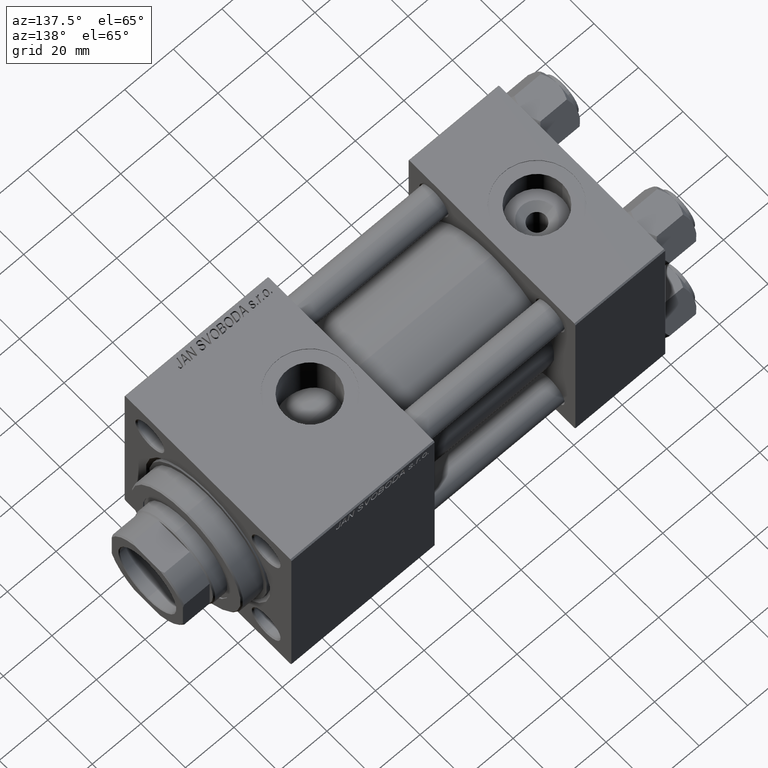
[diagram: clean part render]
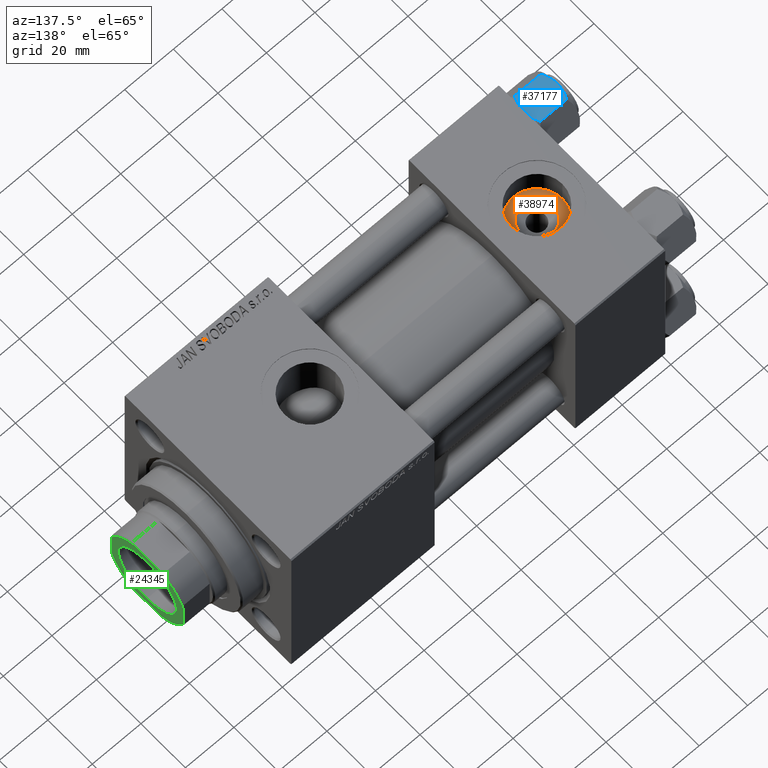
[diagram: same view with three faces highlighted in distinct colors, each labeled with its STEP entity id]
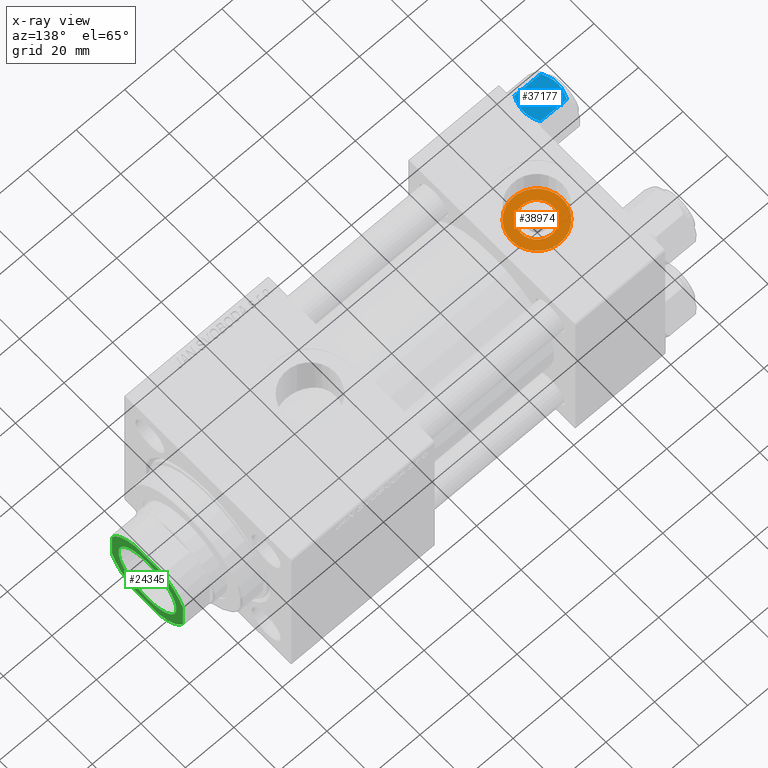
[diagram: x-ray of the same camera — body ghosted, the three highlighted faces saturated]
A machine part, auxiliary view with three faces highlighted in distinct colors.
The next image is the same camera in x-ray (body ghosted, the three faces saturated) — at least one of them is partly hidden behind the body in this view.
Their STEP definitions:

[orange] entity #38974 — the highlighted planar face has unit normal (0, 0, 1).
#921 = EDGE_CURVE ( 'NONE', #39204, #44879, #44439, .T. ) ;
#4112 = CARTESIAN_POINT ( 'NONE',  ( 18.50000000000000000, -5.204170427930421283E-15, 26.69999999999999929 ) ) ;
#7410 = AXIS2_PLACEMENT_3D ( 'NONE', #20729, #8587, #39753 ) ;
#8013 = VERTEX_POINT ( 'NONE', #18516 ) ;
#8190 = DIRECTION ( 'NONE',  ( 1.000000000000000000, 0.000000000000000000, 0.000000000000000000 ) ) ;
#8587 = DIRECTION ( 'NONE',  ( -0.000000000000000000, -0.000000000000000000, -1.000000000000000000 ) ) ;
#9542 = AXIS2_PLACEMENT_3D ( 'NONE', #4112, #27685, #28172 ) ;
#9697 = DIRECTION ( 'NONE',  ( 1.000000000000000000, 0.000000000000000000, 0.000000000000000000 ) ) ;
#10641 = CARTESIAN_POINT ( 'NONE',  ( 11.86000000000001364, -4.391004953296580751E-15, 26.69999999999999929 ) ) ;
#11038 = CARTESIAN_POINT ( 'NONE',  ( 18.50000000000000000, -5.204170427930421283E-15, 26.69999999999999929 ) ) ;
#12160 = CIRCLE ( 'NONE', #14600, 10.48000000000000043 ) ;
#14600 = AXIS2_PLACEMENT_3D ( 'NONE', #49526, #45189, #9697 ) ;
#16172 = AXIS2_PLACEMENT_3D ( 'NONE', #38109, #19334, #8190 ) ;
#18516 = CARTESIAN_POINT ( 'NONE',  ( 25.13999999999998636, -5.204170427930421283E-15, 26.69999999999999929 ) ) ;
#18636 = FACE_BOUND ( 'NONE', #23714, .T. ) ;
#19334 = DIRECTION ( 'NONE',  ( -0.000000000000000000, -0.000000000000000000, -1.000000000000000000 ) ) ;
#20729 = CARTESIAN_POINT ( 'NONE',  ( 18.50000000000000000, -5.204170427930421283E-15, 26.69999999999999929 ) ) ;
#20773 = VERTEX_POINT ( 'NONE', #10641 ) ;
#23714 = EDGE_LOOP ( 'NONE', ( #42103, #24581 ) ) ;
#24581 = ORIENTED_EDGE ( 'NONE', *, *, #36056, .T. ) ;
#26475 = DIRECTION ( 'NONE',  ( 0.000000000000000000, 0.000000000000000000, 1.000000000000000000 ) ) ;
#27685 = DIRECTION ( 'NONE',  ( 0.000000000000000000, 0.000000000000000000, 1.000000000000000000 ) ) ;
#28172 = DIRECTION ( 'NONE',  ( 1.000000000000000000, 0.000000000000000000, 0.000000000000000000 ) ) ;
#28871 = EDGE_LOOP ( 'NONE', ( #28991, #47208 ) ) ;
#28991 = ORIENTED_EDGE ( 'NONE', *, *, #37016, .T. ) ;
#30250 = CARTESIAN_POINT ( 'NONE',  ( 8.019999999999999574, -3.920740582423995006E-15, 26.69999999999999929 ) ) ;
#30314 = FACE_OUTER_BOUND ( 'NONE', #28871, .T. ) ;
#31697 = CIRCLE ( 'NONE', #7410, 6.639999999999986358 ) ;
#34366 = DIRECTION ( 'NONE',  ( 1.000000000000000000, 0.000000000000000000, -0.000000000000000000 ) ) ;
#36056 = EDGE_CURVE ( 'NONE', #20773, #8013, #39615, .T. ) ;
#37016 = EDGE_CURVE ( 'NONE', #44879, #39204, #12160, .T. ) ;
#38109 = CARTESIAN_POINT ( 'NONE',  ( 18.50000000000000000, -5.204170427930421283E-15, 26.69999999999999929 ) ) ;
#38114 = CARTESIAN_POINT ( 'NONE',  ( 28.98000000000000043, -5.204170427930421283E-15, 26.69999999999999929 ) ) ;
#38974 = ADVANCED_FACE ( 'NONE', ( #18636, #30314 ), #45777, .T. ) ;
#39204 = VERTEX_POINT ( 'NONE', #30250 ) ;
#39615 = CIRCLE ( 'NONE', #16172, 6.639999999999986358 ) ;
#39753 = DIRECTION ( 'NONE',  ( 1.000000000000000000, 0.000000000000000000, 0.000000000000000000 ) ) ;
#42103 = ORIENTED_EDGE ( 'NONE', *, *, #47704, .T. ) ;
#44439 = CIRCLE ( 'NONE', #9542, 10.48000000000000043 ) ;
#44879 = VERTEX_POINT ( 'NONE', #38114 ) ;
#45189 = DIRECTION ( 'NONE',  ( 0.000000000000000000, 0.000000000000000000, 1.000000000000000000 ) ) ;
#45777 = PLANE ( 'NONE',  #48703 ) ;
#47208 = ORIENTED_EDGE ( 'NONE', *, *, #921, .T. ) ;
#47704 = EDGE_CURVE ( 'NONE', #8013, #20773, #31697, .T. ) ;
#48703 = AXIS2_PLACEMENT_3D ( 'NONE', #11038, #26475, #34366 ) ;
#49526 = CARTESIAN_POINT ( 'NONE',  ( 18.50000000000000000, -5.204170427930421283E-15, 26.69999999999999929 ) ) ;

[blue] entity #37177 — the highlighted planar face has unit normal (0, 0, -1).
#373 = CARTESIAN_POINT ( 'NONE',  ( -10.69859855102501101, 1.595914123792268491, -13.28585617404753627 ) ) ;
#1039 = CARTESIAN_POINT ( 'NONE',  ( -11.61999999999999922, 6.288644352490894150E-15, -14.00000000000000000 ) ) ;
#1254 = CARTESIAN_POINT ( 'NONE',  ( -11.61999999999999922, 6.288644352490894150E-15, -14.00000000000000000 ) ) ;
#3418 = CARTESIAN_POINT ( 'NONE',  ( -8.460569896449618099, 5.472293462311865753, 3.939644352451667145E-15 ) ) ;
#3663 = CARTESIAN_POINT ( 'NONE',  ( -5.809999999999997833, 10.06321519197518022, -1.556784808024814115 ) ) ;
#4611 = DIRECTION ( 'NONE',  ( -0.000000000000000000, -0.000000000000000000, 1.000000000000000000 ) ) ;
#5095 = CARTESIAN_POINT ( 'NONE',  ( -6.265018354709776638, 9.275100283241455301, -12.89823354668505218 ) ) ;
#5497 = CARTESIAN_POINT ( 'NONE',  ( -9.716999946243694453, 3.296092779912229265, -0.1545239700039824915 ) ) ;
#6003 = CARTESIAN_POINT ( 'NONE',  ( -11.16498164529022219, 0.7881149087337359083, -1.101766453314949379 ) ) ;
#7569 = ORIENTED_EDGE ( 'NONE', *, *, #45726, .F. ) ;
#7737 = CARTESIAN_POINT ( 'NONE',  ( -8.715000000000003411, 5.031607595987592774, 0.000000000000000000 ) ) ;
#8404 = FACE_OUTER_BOUND ( 'NONE', #41782, .T. ) ;
#8496 = CARTESIAN_POINT ( 'NONE',  ( -9.227666995912096937, 4.143642311704127223, -13.96005881939308857 ) ) ;
#8698 = LINE ( 'NONE', #12994, #9840 ) ;
#8741 = CARTESIAN_POINT ( 'NONE',  ( -9.974696630283190757, 2.849749030213795109, -13.69973261901325934 ) ) ;
#8892 = DIRECTION ( 'NONE',  ( 0.5000000000000001110, 0.8660254037844384856, 0.000000000000000000 ) ) ;
#9323 = EDGE_CURVE ( 'NONE', #13067, #17382, #29662, .T. ) ;
#9840 = VECTOR ( 'NONE', #23901, 1000.000000000000000 ) ;
#10480 = B_SPLINE_CURVE_WITH_KNOTS ( 'NONE', 3,
 ( #40225, #48123, #5497, #36689, #6003, #36429 ),
 .UNSPECIFIED., .F., .F.,
 ( 4, 2, 4 ),
 ( 0.006022845781655589842, 0.009013049135303633289, 0.01200325248895167674 ),
 .UNSPECIFIED. ) ;
#11111 = EDGE_CURVE ( 'NONE', #36585, #20021, #8698, .T. ) ;
#11159 = CARTESIAN_POINT ( 'NONE',  ( -8.715000000000003411, 5.031607595987592774, 0.000000000000000000 ) ) ;
#11260 = ORIENTED_EDGE ( 'NONE', *, *, #42437, .F. ) ;
#11438 = B_SPLINE_CURVE_WITH_KNOTS ( 'NONE', 3,
 ( #39821, #19369, #11536, #15081, #5095, #23421 ),
 .UNSPECIFIED., .F., .F.,
 ( 4, 2, 4 ),
 ( 0.006022845781655582903, 0.009013049135303629819, 0.01200325248895167847 ),
 .UNSPECIFIED. ) ;
#11536 = CARTESIAN_POINT ( 'NONE',  ( -7.713000053756302599, 6.767122412062954062, -13.84547602999601601 ) ) ;
#11811 = CARTESIAN_POINT ( 'NONE',  ( -8.969430103550378064, 4.590921729663314466, -14.00000000000000178 ) ) ;
#12453 = DIRECTION ( 'NONE',  ( 0.8660254037844385966, -0.5000000000000002220, 0.000000000000000000 ) ) ;
#12843 = EDGE_CURVE ( 'NONE', #13067, #50194, #30744, .T. ) ;
#12994 = CARTESIAN_POINT ( 'NONE',  ( -5.809999999999997833, 10.06321519197518022, -14.00000000000000000 ) ) ;
#13067 = VERTEX_POINT ( 'NONE', #33762 ) ;
#15055 = CARTESIAN_POINT ( 'NONE',  ( -11.61999999999999922, 6.270720075409452187E-15, -1.556784808024810562 ) ) ;
#15081 = CARTESIAN_POINT ( 'NONE',  ( -6.733375043383492020, 8.463882702393842550, -13.28854452935654962 ) ) ;
#15338 = CARTESIAN_POINT ( 'NONE',  ( -6.731401448974986934, 8.467301068182916168, -0.7141438259524646170 ) ) ;
#16106 = CARTESIAN_POINT ( 'NONE',  ( -11.61999999999999922, 6.270720075510426383E-15, -12.44321519197518811 ) ) ;
#16209 = AXIS2_PLACEMENT_3D ( 'NONE', #1254, #12453, #8892 ) ;
#17172 = VECTOR ( 'NONE', #4611, 1000.000000000000000 ) ;
#17382 = VERTEX_POINT ( 'NONE', #18496 ) ;
#18218 = EDGE_CURVE ( 'NONE', #17382, #36585, #11438, .T. ) ;
#18496 = CARTESIAN_POINT ( 'NONE',  ( -8.715000000000001634, 5.031607595987591885, -14.00000000000000000 ) ) ;
#19369 = CARTESIAN_POINT ( 'NONE',  ( -8.209704053696567527, 5.906805847843725310, -14.00000000000000533 ) ) ;
#20021 = VERTEX_POINT ( 'NONE', #26076 ) ;
#22685 = CARTESIAN_POINT ( 'NONE',  ( -8.202333004087897450, 5.919572880271055659, -0.03994118060690620559 ) ) ;
#23337 = B_SPLINE_CURVE_WITH_KNOTS ( 'NONE', 3,
 ( #3663, #34610, #15338, #23697, #42461, #22685, #3418, #7737 ),
 .UNSPECIFIED., .F., .F.,
 ( 4, 2, 2, 4 ),
 ( 2.544312114902182352E-07, 0.003011550106433540791, 0.004517197944044565316, 0.006022845781655589842 ),
 .UNSPECIFIED. ) ;
#23399 = VERTEX_POINT ( 'NONE', #11159 ) ;
#23421 = CARTESIAN_POINT ( 'NONE',  ( -5.809999999999997833, 10.06321519197518022, -12.44321519197518455 ) ) ;
#23697 = CARTESIAN_POINT ( 'NONE',  ( -7.455303369716805406, 7.213466161761384221, -0.3002673809867362764 ) ) ;
#23901 = DIRECTION ( 'NONE',  ( -0.000000000000000000, -0.000000000000000000, 1.000000000000000000 ) ) ;
#24828 = PLANE ( 'NONE',  #16209 ) ;
#26076 = CARTESIAN_POINT ( 'NONE',  ( -5.809999999999997833, 10.06321519197518022, -1.556784808024814115 ) ) ;
#27342 = ORIENTED_EDGE ( 'NONE', *, *, #18218, .F. ) ;
#29662 = B_SPLINE_CURVE_WITH_KNOTS ( 'NONE', 3,
 ( #16106, #31568, #373, #8741, #35870, #8496, #11811, #38920 ),
 .UNSPECIFIED., .F., .F.,
 ( 4, 2, 2, 4 ),
 ( 2.544312114905218436E-07, 0.003011550106433537755, 0.004517197944044560980, 0.006022845781655582903 ),
 .UNSPECIFIED. ) ;
#29786 = CARTESIAN_POINT ( 'NONE',  ( -5.809999999999997833, 10.06321519197518022, -12.44321519197518455 ) ) ;
#30744 = LINE ( 'NONE', #1039, #17172 ) ;
#30792 = ORIENTED_EDGE ( 'NONE', *, *, #12843, .T. ) ;
#31568 = CARTESIAN_POINT ( 'NONE',  ( -11.16445427487471598, 0.7890283410878030645, -12.89876091710047312 ) ) ;
#33762 = CARTESIAN_POINT ( 'NONE',  ( -11.61999999999999922, 6.270720075510426383E-15, -12.44321519197518811 ) ) ;
#34084 = ORIENTED_EDGE ( 'NONE', *, *, #11111, .F. ) ;
#34610 = CARTESIAN_POINT ( 'NONE',  ( -6.265545725125282850, 9.274186850887385702, -1.101239082899533539 ) ) ;
#35870 = CARTESIAN_POINT ( 'NONE',  ( -9.729165168613649328, 3.275021996682086822, -13.80960203119265906 ) ) ;
#36429 = CARTESIAN_POINT ( 'NONE',  ( -11.61999999999999922, 6.270720075409452187E-15, -1.556784808024810562 ) ) ;
#36585 = VERTEX_POINT ( 'NONE', #29786 ) ;
#36689 = CARTESIAN_POINT ( 'NONE',  ( -10.69662495661650148, 1.599332489581337668, -0.7114554706434472742 ) ) ;
#37177 = ADVANCED_FACE ( 'NONE', ( #8404 ), #24828, .F. ) ;
#38673 = ORIENTED_EDGE ( 'NONE', *, *, #9323, .F. ) ;
#38920 = CARTESIAN_POINT ( 'NONE',  ( -8.715000000000001634, 5.031607595987591885, -14.00000000000000000 ) ) ;
#39821 = CARTESIAN_POINT ( 'NONE',  ( -8.715000000000001634, 5.031607595987591885, -14.00000000000000000 ) ) ;
#40225 = CARTESIAN_POINT ( 'NONE',  ( -8.715000000000003411, 5.031607595987592774, 0.000000000000000000 ) ) ;
#41782 = EDGE_LOOP ( 'NONE', ( #38673, #30792, #7569, #11260, #34084, #27342 ) ) ;
#42437 = EDGE_CURVE ( 'NONE', #20021, #23399, #23337, .T. ) ;
#42461 = CARTESIAN_POINT ( 'NONE',  ( -7.700834831386344170, 6.788193195293096949, -0.1903979688073401122 ) ) ;
#45726 = EDGE_CURVE ( 'NONE', #23399, #50194, #10480, .T. ) ;
#48123 = CARTESIAN_POINT ( 'NONE',  ( -9.220295946303428636, 4.156409344131455796, 3.796401669593772542E-15 ) ) ;
#50194 = VERTEX_POINT ( 'NONE', #15055 ) ;

[green] entity #24345 — the highlighted planar face has unit normal (1, 0, -0).
#464 = CARTESIAN_POINT ( 'NONE',  ( -16.00000000000000000, -16.00000000000000000, 142.0000000000000284 ) ) ;
#1068 = EDGE_CURVE ( 'NONE', #30544, #28751, #45167, .T. ) ;
#1765 = ORIENTED_EDGE ( 'NONE', *, *, #36151, .T. ) ;
#2380 = ORIENTED_EDGE ( 'NONE', *, *, #13144, .T. ) ;
#2861 = CARTESIAN_POINT ( 'NONE',  ( 0.000000000000000000, 0.000000000000000000, 142.0000000000000284 ) ) ;
#3834 = CARTESIAN_POINT ( 'NONE',  ( 5.744562646538022399, -16.00000000000000000, 142.0000000000000284 ) ) ;
#4016 = DIRECTION ( 'NONE',  ( 1.000000000000000000, 0.000000000000000000, 0.000000000000000000 ) ) ;
#5046 = VECTOR ( 'NONE', #34487, 1000.000000000000000 ) ;
#5102 = VERTEX_POINT ( 'NONE', #16781 ) ;
#5930 = DIRECTION ( 'NONE',  ( -0.000000000000000000, 0.000000000000000000, 1.000000000000000000 ) ) ;
#6266 = ORIENTED_EDGE ( 'NONE', *, *, #38343, .T. ) ;
#7335 = DIRECTION ( 'NONE',  ( 1.084202172485504434E-16, -1.000000000000000000, 0.000000000000000000 ) ) ;
#7818 = AXIS2_PLACEMENT_3D ( 'NONE', #41274, #44841, #44589 ) ;
#8331 = EDGE_CURVE ( 'NONE', #28751, #30544, #41315, .T. ) ;
#8368 = LINE ( 'NONE', #46668, #5046 ) ;
#9261 = ORIENTED_EDGE ( 'NONE', *, *, #1068, .T. ) ;
#9633 = CARTESIAN_POINT ( 'NONE',  ( 0.000000000000000000, 0.000000000000000000, 142.0000000000000284 ) ) ;
#10688 = CARTESIAN_POINT ( 'NONE',  ( 0.000000000000000000, 0.000000000000000000, 142.0000000000000284 ) ) ;
#13144 = EDGE_CURVE ( 'NONE', #43471, #50203, #8368, .T. ) ;
#13363 = ORIENTED_EDGE ( 'NONE', *, *, #13605, .T. ) ;
#13605 = EDGE_CURVE ( 'NONE', #5102, #23400, #30149, .T. ) ;
#14896 = VERTEX_POINT ( 'NONE', #20117 ) ;
#14932 = ORIENTED_EDGE ( 'NONE', *, *, #35896, .T. ) ;
#15208 = CARTESIAN_POINT ( 'NONE',  ( -5.744562646538005524, -16.00000000000000000, 142.0000000000000284 ) ) ;
#15340 = AXIS2_PLACEMENT_3D ( 'NONE', #37498, #22261, #37982 ) ;
#16781 = CARTESIAN_POINT ( 'NONE',  ( -16.00000000000000000, -5.744562646538006412, 142.0000000000000284 ) ) ;
#17168 = AXIS2_PLACEMENT_3D ( 'NONE', #9633, #24579, #44370 ) ;
#17599 = EDGE_CURVE ( 'NONE', #23400, #19349, #35217, .T. ) ;
#18455 = CARTESIAN_POINT ( 'NONE',  ( 5.744562646538022399, 16.00000000000000000, 142.0000000000000284 ) ) ;
#19349 = VERTEX_POINT ( 'NONE', #3834 ) ;
#19360 = ORIENTED_EDGE ( 'NONE', *, *, #8331, .T. ) ;
#19501 = LINE ( 'NONE', #34471, #25121 ) ;
#20117 = CARTESIAN_POINT ( 'NONE',  ( 16.00000000000000355, 5.744562646538017070, 142.0000000000000284 ) ) ;
#21882 = DIRECTION ( 'NONE',  ( 1.000000000000000000, 0.000000000000000000, 0.000000000000000000 ) ) ;
#22261 = DIRECTION ( 'NONE',  ( -0.000000000000000000, 0.000000000000000000, 1.000000000000000000 ) ) ;
#22745 = DIRECTION ( 'NONE',  ( 1.000000000000000000, 0.000000000000000000, 0.000000000000000000 ) ) ;
#22859 = DIRECTION ( 'NONE',  ( -2.168404344971008868E-16, 1.000000000000000000, -0.000000000000000000 ) ) ;
#23288 = AXIS2_PLACEMENT_3D ( 'NONE', #10688, #38533, #26869 ) ;
#23400 = VERTEX_POINT ( 'NONE', #15208 ) ;
#23438 = AXIS2_PLACEMENT_3D ( 'NONE', #40667, #5930, #21882 ) ;
#24345 = ADVANCED_FACE ( 'NONE', ( #33183, #33447 ), #48673, .T. ) ;
#24579 = DIRECTION ( 'NONE',  ( -0.000000000000000000, 0.000000000000000000, 1.000000000000000000 ) ) ;
#25121 = VECTOR ( 'NONE', #7335, 1000.000000000000000 ) ;
#26869 = DIRECTION ( 'NONE',  ( 1.000000000000000000, 0.000000000000000000, 0.000000000000000000 ) ) ;
#26871 = EDGE_CURVE ( 'NONE', #42478, #14896, #42116, .T. ) ;
#26958 = EDGE_LOOP ( 'NONE', ( #19360, #9261 ) ) ;
#27689 = DIRECTION ( 'NONE',  ( -0.000000000000000000, 0.000000000000000000, 1.000000000000000000 ) ) ;
#28751 = VERTEX_POINT ( 'NONE', #29751 ) ;
#29388 = CARTESIAN_POINT ( 'NONE',  ( -16.00000000000000355, 5.744562646538018846, 142.0000000000000284 ) ) ;
#29751 = CARTESIAN_POINT ( 'NONE',  ( 13.05000000000000426, 0.000000000000000000, 142.0000000000000284 ) ) ;
#30149 = CIRCLE ( 'NONE', #47174, 16.99999999999998934 ) ;
#30544 = VERTEX_POINT ( 'NONE', #49932 ) ;
#33183 = FACE_BOUND ( 'NONE', #26958, .T. ) ;
#33447 = FACE_OUTER_BOUND ( 'NONE', #43082, .T. ) ;
#34471 = CARTESIAN_POINT ( 'NONE',  ( -16.00000000000000355, 16.00000000000000000, 142.0000000000000284 ) ) ;
#34487 = DIRECTION ( 'NONE',  ( -1.000000000000000000, -0.000000000000000000, -0.000000000000000000 ) ) ;
#35217 = LINE ( 'NONE', #464, #44848 ) ;
#35310 = DIRECTION ( 'NONE',  ( 1.000000000000000000, 0.000000000000000000, 0.000000000000000000 ) ) ;
#35896 = EDGE_CURVE ( 'NONE', #14896, #43471, #38029, .T. ) ;
#36151 = EDGE_CURVE ( 'NONE', #19349, #42478, #42024, .T. ) ;
#36216 = VECTOR ( 'NONE', #22859, 1000.000000000000000 ) ;
#37498 = CARTESIAN_POINT ( 'NONE',  ( 0.000000000000000000, 0.000000000000000000, 142.0000000000000284 ) ) ;
#37982 = DIRECTION ( 'NONE',  ( 1.000000000000000000, 0.000000000000000000, 0.000000000000000000 ) ) ;
#38029 = CIRCLE ( 'NONE', #23438, 16.99999999999999645 ) ;
#38343 = EDGE_CURVE ( 'NONE', #45144, #5102, #19501, .T. ) ;
#38374 = CARTESIAN_POINT ( 'NONE',  ( -5.744562646538022399, 16.00000000000000000, 142.0000000000000284 ) ) ;
#38533 = DIRECTION ( 'NONE',  ( 0.000000000000000000, -0.000000000000000000, -1.000000000000000000 ) ) ;
#39045 = CIRCLE ( 'NONE', #17168, 16.99999999999999645 ) ;
#40667 = CARTESIAN_POINT ( 'NONE',  ( 0.000000000000000000, 0.000000000000000000, 142.0000000000000284 ) ) ;
#41274 = CARTESIAN_POINT ( 'NONE',  ( 0.000000000000000000, 0.000000000000000000, 142.0000000000000284 ) ) ;
#41315 = CIRCLE ( 'NONE', #47035, 13.05000000000000426 ) ;
#42008 = CARTESIAN_POINT ( 'NONE',  ( 0.000000000000000000, 0.000000000000000000, 142.0000000000000284 ) ) ;
#42024 = CIRCLE ( 'NONE', #15340, 16.99999999999999645 ) ;
#42116 = LINE ( 'NONE', #49528, #36216 ) ;
#42478 = VERTEX_POINT ( 'NONE', #43455 ) ;
#43082 = EDGE_LOOP ( 'NONE', ( #48973, #14932, #2380, #48129, #6266, #13363, #47798, #1765 ) ) ;
#43455 = CARTESIAN_POINT ( 'NONE',  ( 16.00000000000000355, -5.744562646538009076, 142.0000000000000284 ) ) ;
#43471 = VERTEX_POINT ( 'NONE', #18455 ) ;
#44370 = DIRECTION ( 'NONE',  ( 1.000000000000000000, 0.000000000000000000, 0.000000000000000000 ) ) ;
#44589 = DIRECTION ( 'NONE',  ( 1.000000000000000000, 0.000000000000000000, 0.000000000000000000 ) ) ;
#44841 = DIRECTION ( 'NONE',  ( -0.000000000000000000, 0.000000000000000000, 1.000000000000000000 ) ) ;
#44848 = VECTOR ( 'NONE', #4016, 1000.000000000000000 ) ;
#45144 = VERTEX_POINT ( 'NONE', #29388 ) ;
#45167 = CIRCLE ( 'NONE', #23288, 13.05000000000000426 ) ;
#46554 = EDGE_CURVE ( 'NONE', #50203, #45144, #39045, .T. ) ;
#46668 = CARTESIAN_POINT ( 'NONE',  ( -16.00000000000000355, 16.00000000000000000, 142.0000000000000284 ) ) ;
#47035 = AXIS2_PLACEMENT_3D ( 'NONE', #42008, #50174, #22745 ) ;
#47174 = AXIS2_PLACEMENT_3D ( 'NONE', #2861, #27689, #35310 ) ;
#47798 = ORIENTED_EDGE ( 'NONE', *, *, #17599, .T. ) ;
#48129 = ORIENTED_EDGE ( 'NONE', *, *, #46554, .T. ) ;
#48673 = PLANE ( 'NONE',  #7818 ) ;
#48973 = ORIENTED_EDGE ( 'NONE', *, *, #26871, .T. ) ;
#49528 = CARTESIAN_POINT ( 'NONE',  ( 16.00000000000000000, 16.00000000000000000, 142.0000000000000284 ) ) ;
#49932 = CARTESIAN_POINT ( 'NONE',  ( -13.05000000000000426, 1.598164072887296563E-15, 142.0000000000000284 ) ) ;
#50174 = DIRECTION ( 'NONE',  ( 0.000000000000000000, -0.000000000000000000, -1.000000000000000000 ) ) ;
#50203 = VERTEX_POINT ( 'NONE', #38374 ) ;